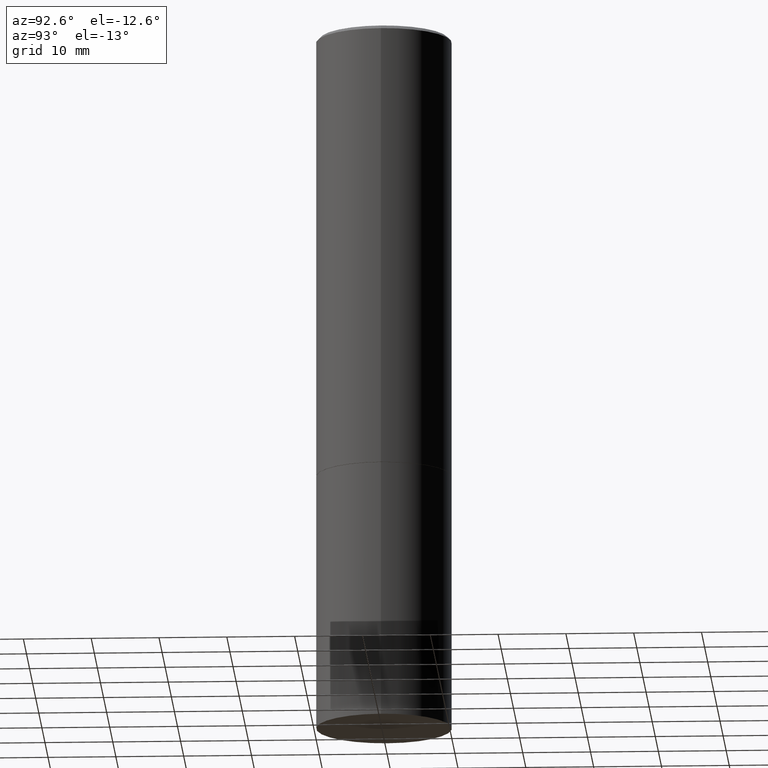
[diagram: clean part render]
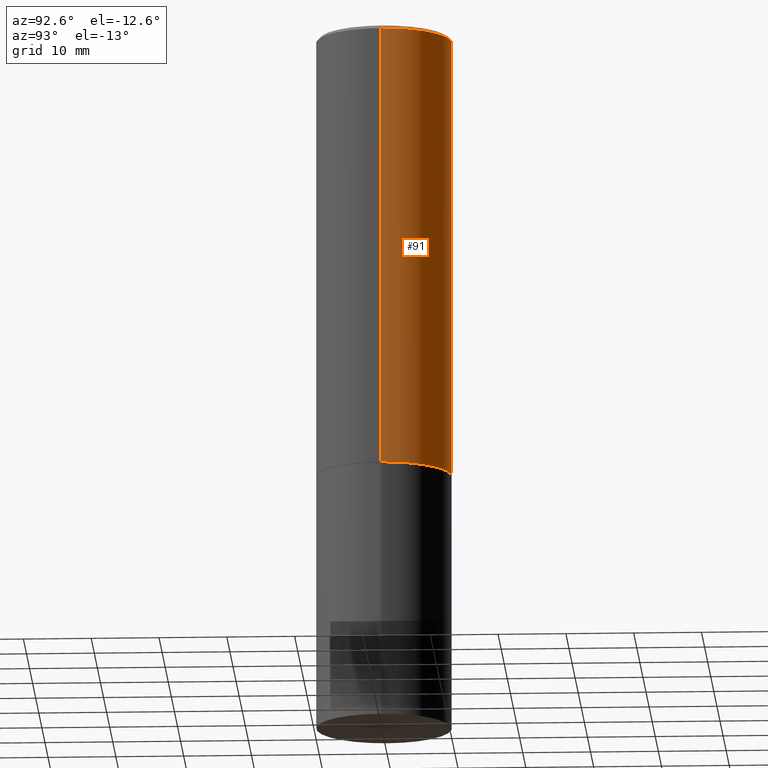
[diagram: same view with one face highlighted and labeled with its STEP entity id]
A machine part, auxiliary view. The second image highlights one B-rep face of the part: STEP entity #91.
In plain terms, the highlighted cylindrical surface (partial cylindrical patch) has radius 10 mm, axis along (-0, 0, 1).
Its self-contained STEP definition (entity closure, byte-faithful):
#11 = CYLINDRICAL_SURFACE ( 'NONE', #223, 0.3936999999999998279 ) ;
#19 = VERTEX_POINT ( 'NONE', #148 ) ;
#22 = DIRECTION ( 'NONE',  ( 1.000000000000000000, -6.982962677686266711E-15, 4.876176775795935793E-29 ) ) ;
#26 = VERTEX_POINT ( 'NONE', #263 ) ;
#41 = CARTESIAN_POINT ( 'NONE',  ( -0.3936999999999996613, 2.679362779428217552E-15, -0.02000000000000010103 ) ) ;
#56 = ORIENTED_EDGE ( 'NONE', *, *, #123, .F. ) ;
#91 = ADVANCED_FACE ( 'NONE', ( #166 ), #11, .T. ) ;
#111 = CARTESIAN_POINT ( 'NONE',  ( 0.000000000000000000, 0.000000000000000000, 0.000000000000000000 ) ) ;
#116 = ORIENTED_EDGE ( 'NONE', *, *, #241, .F. ) ;
#123 = EDGE_CURVE ( 'NONE', #26, #19, #151, .T. ) ;
#127 = AXIS2_PLACEMENT_3D ( 'NONE', #215, #272, #356 ) ;
#147 = VECTOR ( 'NONE', #210, 39.37007874015748143 ) ;
#148 = CARTESIAN_POINT ( 'NONE',  ( 0.3936999999999996613, -2.770807688499512973E-15, -0.02000000000000010103 ) ) ;
#151 = LINE ( 'NONE', #293, #167 ) ;
#166 = FACE_OUTER_BOUND ( 'NONE', #227, .T. ) ;
#167 = VECTOR ( 'NONE', #323, 39.37007874015748143 ) ;
#175 = DIRECTION ( 'NONE',  ( -2.445468806185136597E-29, 3.491481338843145583E-15, 1.000000000000000000 ) ) ;
#210 = DIRECTION ( 'NONE',  ( -2.445468806185136877E-29, 3.491481338843145188E-15, 1.000000000000000000 ) ) ;
#212 = CIRCLE ( 'NONE', #127, 0.3937000000000000499 ) ;
#215 = CARTESIAN_POINT ( 'NONE',  ( 6.351860677185276395E-29, -9.068773629511191193E-15, -2.597400000000001263 ) ) ;
#223 = AXIS2_PLACEMENT_3D ( 'NONE', #111, #300, #22 ) ;
#227 = EDGE_LOOP ( 'NONE', ( #284, #342, #116, #56 ) ) ;
#228 = CIRCLE ( 'NONE', #267, 0.3936999999999996613 ) ;
#236 = LINE ( 'NONE', #347, #147 ) ;
#241 = EDGE_CURVE ( 'NONE', #19, #339, #228, .T. ) ;
#263 = CARTESIAN_POINT ( 'NONE',  ( 0.3937000000000000499, -1.181796603571627441E-14, -2.597400000000001263 ) ) ;
#267 = AXIS2_PLACEMENT_3D ( 'NONE', #343, #175, #348 ) ;
#272 = DIRECTION ( 'NONE',  ( -2.445468806185136597E-29, 3.491481338843145583E-15, 1.000000000000000000 ) ) ;
#273 = EDGE_CURVE ( 'NONE', #341, #339, #236, .T. ) ;
#284 = ORIENTED_EDGE ( 'NONE', *, *, #307, .T. ) ;
#293 = CARTESIAN_POINT ( 'NONE',  ( 0.3936999999999998279, -2.749192406205082033E-15, 1.919750796630859051E-29 ) ) ;
#300 = DIRECTION ( 'NONE',  ( -2.445468806185136597E-29, 3.491481338843145583E-15, 1.000000000000000000 ) ) ;
#307 = EDGE_CURVE ( 'NONE', #26, #341, #212, .T. ) ;
#323 = DIRECTION ( 'NONE',  ( -2.445468806185136877E-29, 3.491481338843145188E-15, 1.000000000000000000 ) ) ;
#327 = CARTESIAN_POINT ( 'NONE',  ( -0.3937000000000000499, -1.771894877456511079E-15, -2.597400000000001263 ) ) ;
#339 = VERTEX_POINT ( 'NONE', #41 ) ;
#341 = VERTEX_POINT ( 'NONE', #327 ) ;
#342 = ORIENTED_EDGE ( 'NONE', *, *, #273, .T. ) ;
#343 = CARTESIAN_POINT ( 'NONE',  ( 4.890937612370298557E-31, -6.982962677686327354E-17, -0.02000000000000010103 ) ) ;
#347 = CARTESIAN_POINT ( 'NONE',  ( -0.3936999999999998279, 2.797406750687513209E-15, -1.936584745033355614E-29 ) ) ;
#348 = DIRECTION ( 'NONE',  ( 1.000000000000000000, -6.982962677686266711E-15, 0.000000000000000000 ) ) ;
#356 = DIRECTION ( 'NONE',  ( 1.000000000000000000, -6.982962677686267499E-15, 0.000000000000000000 ) ) ;